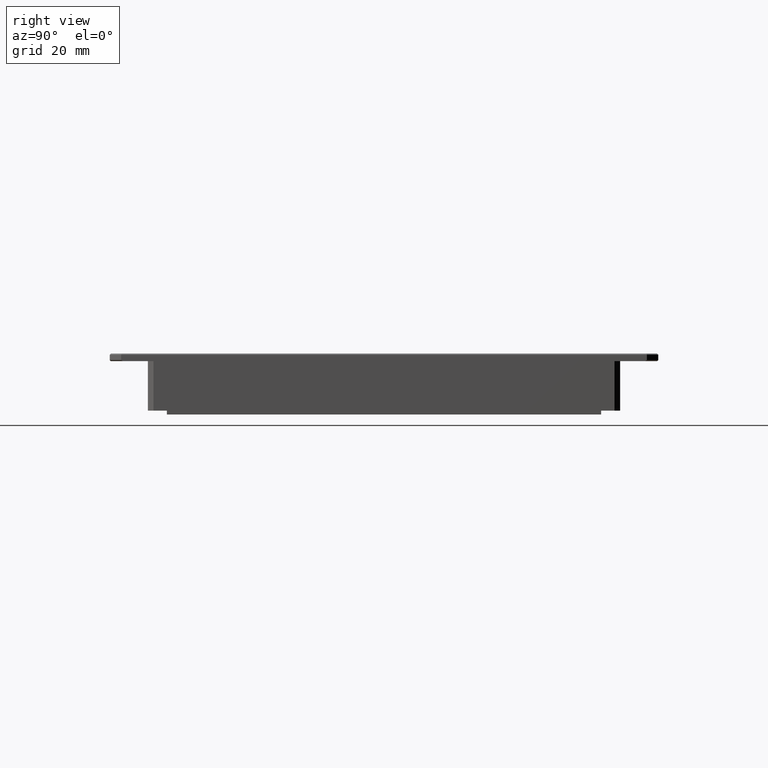
[diagram: clean part render]
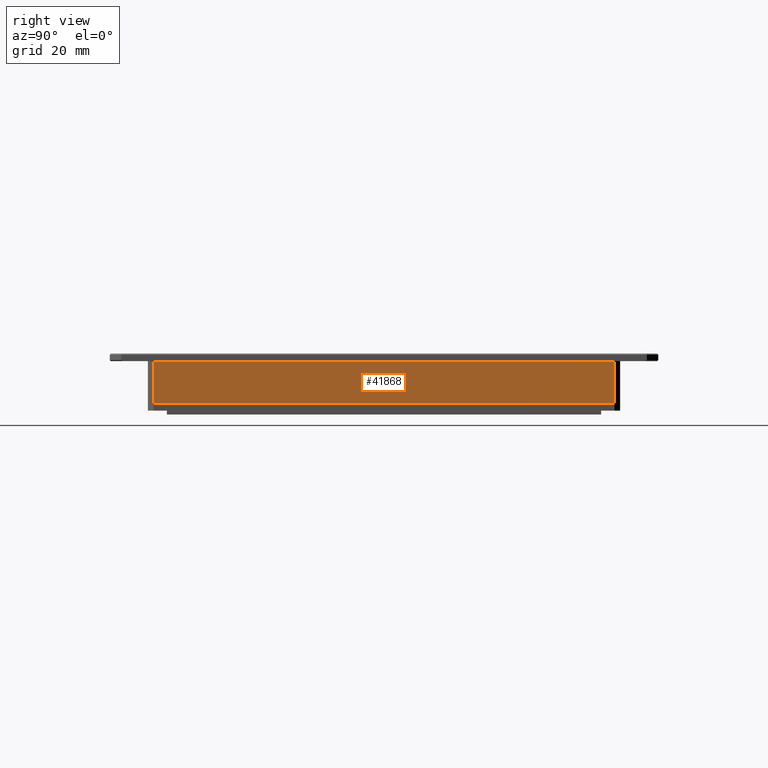
[diagram: same view with one face highlighted and labeled with its STEP entity id]
A machine part, right view. The second image highlights one B-rep face of the part: STEP entity #41868.
In plain terms, the highlighted planar face has unit normal (-1, 0, 0).
Its self-contained STEP definition (entity closure, byte-faithful):
#3556 = EDGE_CURVE ( 'NONE', #70018, #33667, #9824, .T. ) ;
#4564 = CARTESIAN_POINT ( 'NONE',  ( 62.64490263459336500, -51.11034746086289000, 10.99999999998362900 ) ) ;
#4692 = ORIENTED_EDGE ( 'NONE', *, *, #59543, .T. ) ;
#7962 = PLANE ( 'NONE',  #33947 ) ;
#9824 = LINE ( 'NONE', #4564, #59490 ) ;
#14161 = VERTEX_POINT ( 'NONE', #82685 ) ;
#18063 = CARTESIAN_POINT ( 'NONE',  ( 62.64490263459336500, -49.61034746086291100, -1.637123596409662000E-011 ) ) ;
#23627 = DIRECTION ( 'NONE',  ( -0.0000000000000000000, -0.0000000000000000000, -1.000000000000000000 ) ) ;
#33319 = ORIENTED_EDGE ( 'NONE', *, *, #88101, .F. ) ;
#33667 = VERTEX_POINT ( 'NONE', #53566 ) ;
#33947 = AXIS2_PLACEMENT_3D ( 'NONE', #56752, #70943, #49356 ) ;
#34756 = DIRECTION ( 'NONE',  ( -0.0000000000000000000, -0.0000000000000000000, -1.000000000000000000 ) ) ;
#34822 = ORIENTED_EDGE ( 'NONE', *, *, #50506, .F. ) ;
#38528 = LINE ( 'NONE', #66171, #76123 ) ;
#41868 = ADVANCED_FACE ( 'NONE', ( #56117 ), #7962, .F. ) ;
#43520 = LINE ( 'NONE', #63825, #61211 ) ;
#49356 = DIRECTION ( 'NONE',  ( 0.0000000000000000000, 0.0000000000000000000, 1.000000000000000000 ) ) ;
#50506 = EDGE_CURVE ( 'NONE', #14161, #71069, #38528, .T. ) ;
#52703 = VECTOR ( 'NONE', #34756, 1000.000000000000000 ) ;
#53566 = CARTESIAN_POINT ( 'NONE',  ( 62.64490263459336500, 71.38965253913710300, 10.99999999998362900 ) ) ;
#54309 = DIRECTION ( 'NONE',  ( 0.0000000000000000000, 1.000000000000000000, -0.0000000000000000000 ) ) ;
#56117 = FACE_OUTER_BOUND ( 'NONE', #60539, .T. ) ;
#56752 = CARTESIAN_POINT ( 'NONE',  ( 62.64490263459336500, -51.11034746086289000, 10.99999999998362900 ) ) ;
#59490 = VECTOR ( 'NONE', #54309, 1000.000000000000000 ) ;
#59543 = EDGE_CURVE ( 'NONE', #70018, #71069, #70385, .T. ) ;
#60539 = EDGE_LOOP ( 'NONE', ( #33319, #61996, #4692, #34822 ) ) ;
#61211 = VECTOR ( 'NONE', #23627, 1000.000000000000000 ) ;
#61996 = ORIENTED_EDGE ( 'NONE', *, *, #3556, .F. ) ;
#63825 = CARTESIAN_POINT ( 'NONE',  ( 62.64490263459336500, 71.38965253913708900, 10.99999999998362900 ) ) ;
#65117 = CARTESIAN_POINT ( 'NONE',  ( 62.64490263459336500, -49.61034746086292600, 10.99999999998362900 ) ) ;
#66171 = CARTESIAN_POINT ( 'NONE',  ( 62.64490263459336500, 72.88965253913710300, -1.637058544279312900E-011 ) ) ;
#67043 = CARTESIAN_POINT ( 'NONE',  ( 62.64490263459336500, -49.61034746086291800, 10.99999999998362900 ) ) ;
#70018 = VERTEX_POINT ( 'NONE', #65117 ) ;
#70385 = LINE ( 'NONE', #67043, #52703 ) ;
#70943 = DIRECTION ( 'NONE',  ( -1.000000000000000000, 0.0000000000000000000, 0.0000000000000000000 ) ) ;
#71069 = VERTEX_POINT ( 'NONE', #18063 ) ;
#74161 = DIRECTION ( 'NONE',  ( -0.0000000000000000000, -1.000000000000000000, -0.0000000000000000000 ) ) ;
#76123 = VECTOR ( 'NONE', #74161, 1000.000000000000000 ) ;
#82685 = CARTESIAN_POINT ( 'NONE',  ( 62.64490263459336500, 71.38965253913710300, -1.637058544279312900E-011 ) ) ;
#88101 = EDGE_CURVE ( 'NONE', #33667, #14161, #43520, .T. ) ;